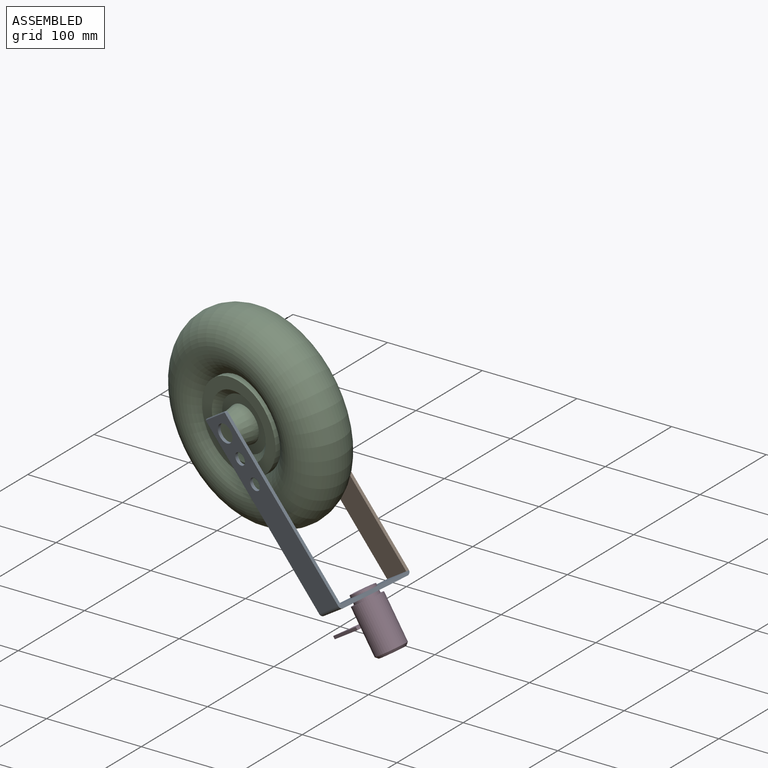
[diagram: assembled view]
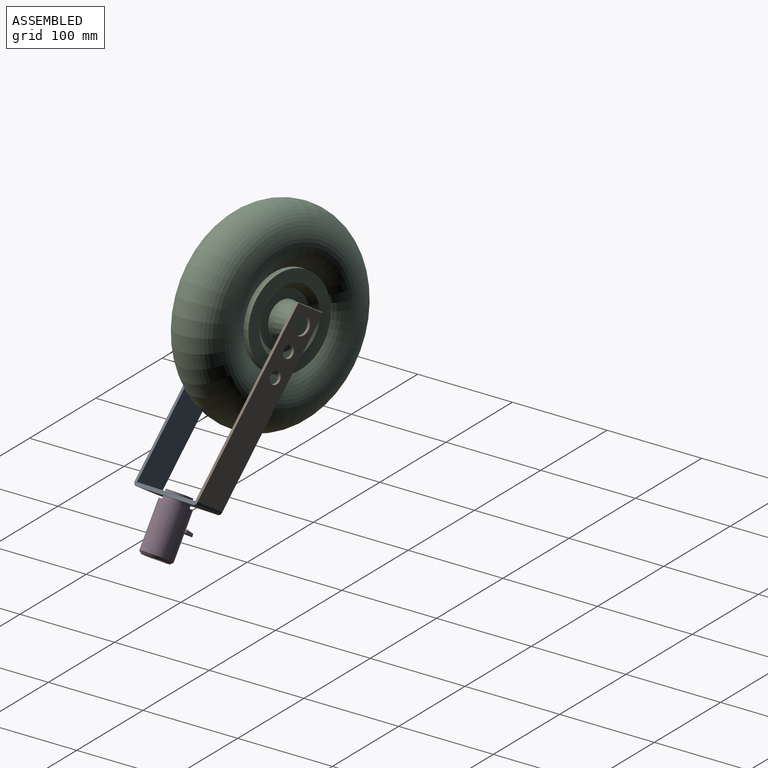
[diagram: assembled view, second angle]
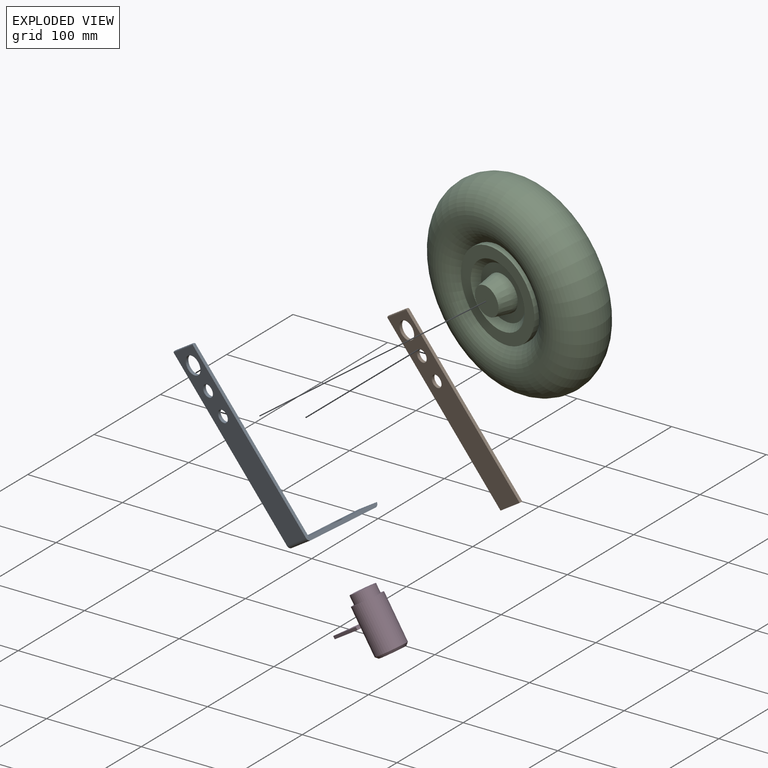
[diagram: exploded view]
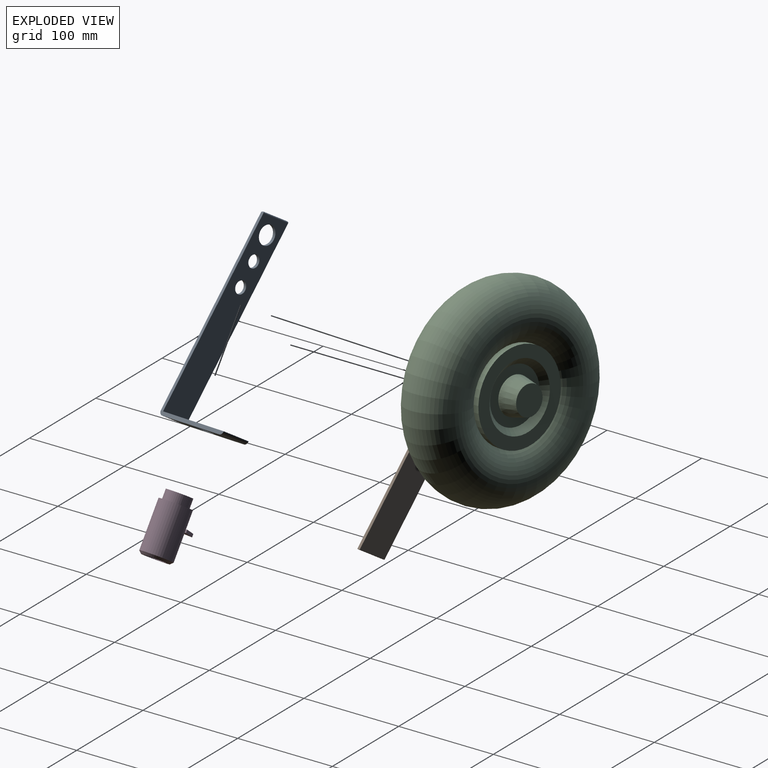
[diagram: exploded view, second angle]
ASSEMBLY  parts=4 mates=3
PART A: 19 faces, bbox 63x196.9x82.6 mm
  f0: cylinder r=10.16mm len=20.32mm, axis (0,1,0), area 243.2mm2, adj f6,f8
  f1: cylinder r=1.27mm len=3.18mm, axis (0,0,-1), area 5.1mm2, adj f10,f11,f13,f14,f16,f17
  f2: cylinder r=6.35mm len=12.7mm, axis (0,0,1), area 126.7mm2, adj f10,f14
  f3: cylinder r=6.35mm len=12.7mm, axis (0,0,1), area 126.7mm2, adj f10,f14
  f4: cylinder r=9.53mm len=19.05mm, axis (0,0,1), area 190mm2, adj f10,f14
  f5: plane 82.55x3.81mm, normal (1,0,0), area 308.3mm2, adj f6,f8,f9,f12,f15
  f6: plane 74.93x32.16mm, normal (0,1,0), area 2085.3mm2, adj f0,f5,f7,f9,f15
  f7: plane 82.55x3.81mm, normal (-1,0,0), area 308.3mm2, adj f6,f8,f9,f11,f15
  f8: plane 79.38x32.16mm, normal (0,-1,0), area 2228.2mm2, adj f0,f5,f7,f9,f10
  f9: cylinder r=3.81mm len=32.16mm, axis (1,0,0), area 192.5mm2, adj f5,f6,f7,f8
  f10: plane 191.79x62.97mm, normal (0,0,1), area 5629.1mm2, adj f1,f2,f3,f4,f8,f11,f12,f17
  f11: plane 191.59x30.79mm, normal (-0.99,0.16,0), area 616.1mm2, adj f1,f7,f10,f14
  f12: plane 191.99x30.86mm, normal (0.99,-0.16,0), area 617.4mm2, adj f5,f10,f14,f16,f17,f18
  f13: plane 29.59x0.64mm, normal (0,-1,0), area 18.8mm2, adj f1,f16,f17,f18
  f14: plane 191.79x62.97mm, normal (0,0,-1), area 5629.1mm2, adj f1,f2,f3,f4,f11,f12,f15,f16
  f15: cylinder r=3.81mm len=32.16mm, axis (-1,0,0), area 192.5mm2, adj f5,f6,f7,f14
  f16: cylinder r=1.27mm len=32.14mm, axis (-1,0,0), area 62.2mm2, adj f1,f12,f13,f14,f18
  f17: cylinder r=1.27mm len=32.14mm, axis (1,0,0), area 62.2mm2, adj f1,f10,f12,f13,f18
  f18: cylinder r=1.27mm len=3.14mm, axis (0,0,1), area 3.9mm2, adj f12,f13,f16,f17
PART B: 13 faces, bbox 63x193.1x3.2 mm
  f0: cylinder r=6.35mm len=12.7mm, axis (0,0,1), area 126.7mm2, adj f7,f8
  f1: cylinder r=6.35mm len=12.7mm, axis (0,0,1), area 126.7mm2, adj f7,f8
  f2: cylinder r=9.53mm len=19.05mm, axis (0,0,-1), area 190mm2, adj f7,f8
  f3: plane 191.99x30.86mm, normal (0.99,-0.16,0), area 617.4mm2, adj f4,f7,f8,f9,f10,f11
  f4: plane 32.16x3.18mm, normal (0,1,0), area 102.1mm2, adj f3,f5,f7,f8
  f5: plane 191.59x30.79mm, normal (-0.99,0.16,0), area 616.1mm2, adj f4,f7,f8,f12
  f6: plane 29.59x0.64mm, normal (0,-1,0), area 18.8mm2, adj f9,f10,f11,f12
  f7: plane 191.79x62.97mm, normal (0,0,1), area 5629.1mm2, adj f0,f1,f2,f3,f4,f5,f10,f12
  f8: plane 191.79x62.97mm, normal (0,0,-1), area 5629.1mm2, adj f0,f1,f2,f3,f4,f5,f11,f12
  f9: cylinder r=1.27mm len=3.14mm, axis (0,0,-1), area 3.9mm2, adj f3,f6,f10,f11
  f10: cylinder r=1.27mm len=32.14mm, axis (-1,0,0), area 62.2mm2, adj f3,f6,f7,f9,f12
  f11: cylinder r=1.27mm len=32.14mm, axis (1,0,0), area 62.2mm2, adj f3,f6,f8,f9,f12
  f12: cylinder r=1.27mm len=3.18mm, axis (0,0,1), area 5.1mm2, adj f5,f6,f7,f8,f10,f11
PART C: 17 faces, bbox 225.4x225.4x76.2 mm
  f0: cone r=34.86mm half-angle=45deg, axis (0,0,1), area 1787.9mm2, adj f12,f14
  f1: cylinder r=19.05mm len=38.1mm, axis (0,0,-1), area 152mm2, adj f2,f14
  f2: cone r=15.27mm half-angle=12deg, axis (0,0,-1), area 1959.9mm2, adj f1,f13
  f3: cylinder r=47.56mm len=95.12mm, axis (0,0,-1), area 1897.6mm2, adj f8,f12
  f4: cone r=19.05mm half-angle=12deg, axis (0,0,1), area 1959.9mm2, adj f5,f11
  f5: cylinder r=19.05mm len=38.1mm, axis (0,0,1), area 152mm2, adj f4,f10
  f6: cone r=28.51mm half-angle=45deg, axis (0,0,-1), area 1787.9mm2, adj f9,f10
  f7: cylinder r=47.56mm len=95.12mm, axis (0,0,1), area 1897.6mm2, adj f8,f9
  f8: torus R=72.64mm, axis (0,0,1), area 79190.1mm2, adj f3,f7
  f9: plane 95.12x95.12mm, normal (0,0,-1), area 3288.6mm2, adj f6,f7
  f10: plane 57.02x57.02mm, normal (0,0,-1), area 1413.9mm2, adj f5,f6
  f11: plane 30.54x30.54mm, normal (0,0,-1), area 732.6mm2, adj f4
  f12: plane 95.12x95.12mm, normal (0,0,1), area 3288.6mm2, adj f0,f3
  f13: plane 30.54x30.54mm, normal (0,0,1), area 732.6mm2, adj f2
  f14: plane 57.02x57.02mm, normal (0,0,1), area 1413.9mm2, adj f0,f1
  f15: cylinder r=50.8mm len=101.6mm, axis (0,0,-1), area 12133.9mm2, adj f16
  f16: torus R=72.64mm, axis (0,0,1), area 71030.2mm2, adj f15
PART D: 15 faces, bbox 64.1x60.3x32.4 mm
  f0: cylinder r=12.7mm len=25.4mm, axis (0,1,0), area 760.1mm2, adj f11,f14
  f1: torus R=8.89mm, axis (0,1,0), area 121.6mm2, adj f2,f13
  f2: cylinder r=10.16mm len=20.32mm, axis (0,1,0), area 324.3mm2, adj f1,f12
  f3: cone r=13.33mm half-angle=45deg, axis (0,-1,0), area 329.6mm2, adj f4,f12
  f4: cylinder r=15.88mm len=48.26mm, axis (0,1,0), area 4725.4mm2, adj f3,f5,f8,f9,f10,f11
  f5: plane 4.31x3.18mm, normal (1,0,0), area 13.7mm2, adj f4,f6,f9,f10
  f6: plane 38.1x3.18mm, normal (0,0,-1), area 121mm2, adj f5,f7,f9,f10
  f7: plane 38.1x30.48mm, normal (-0.62,0,0.78), area 154.9mm2, adj f6,f8,f9,f10
  f8: plane 3.18x1.77mm, normal (1,0,0), area 5.6mm2, adj f4,f7,f9,f10
  f9: plane 38.1x30.48mm, normal (0,1,0), area 483.7mm2, adj f4,f5,f6,f7,f8
  f10: plane 38.1x30.48mm, normal (0,-1,0), area 483.7mm2, adj f4,f5,f6,f7,f8
  f11: plane 31.75x31.75mm, normal (0,-1,0), area 285mm2, adj f0,f4
  f12: plane 26.67x26.67mm, normal (0,1,0), area 234.4mm2, adj f2,f3
  f13: plane 17.78x17.78mm, normal (0,1,0), area 248.3mm2, adj f1
  f14: plane 25.4x25.4mm, normal (0,-1,0), area 506.7mm2, adj f0
PLACE A rot(axis=(-0.9,-0.15,-0.4),93.6deg) t=(1087.97,246.62,27)mm
PLACE B rot(axis=(-0.9,-0.15,-0.4),93.6deg) t=(1087.97,246.62,27)mm
PLACE C rot(axis=(-0.9,-0.15,-0.4),93.6deg) t=(1079.21,209.77,22.92)mm
PLACE D rot(axis=(-0.9,-0.15,-0.4),93.6deg) t=(1169.65,191.24,-157.85)mm
MATE revolute D.f0 <-> A.f0  axis (-0.55,0.04,0.84) through (1196.59,196.18,-106.2)mm
MATE revolute C.f0 <-> B.f2  axis (0.23,0.97,0.11) through (1087.97,246.62,27)mm
MATE fastened A.f8 <-> B.f4  axis (-0.55,0.04,0.84) through (1207.43,236.03,-103.93)mm
